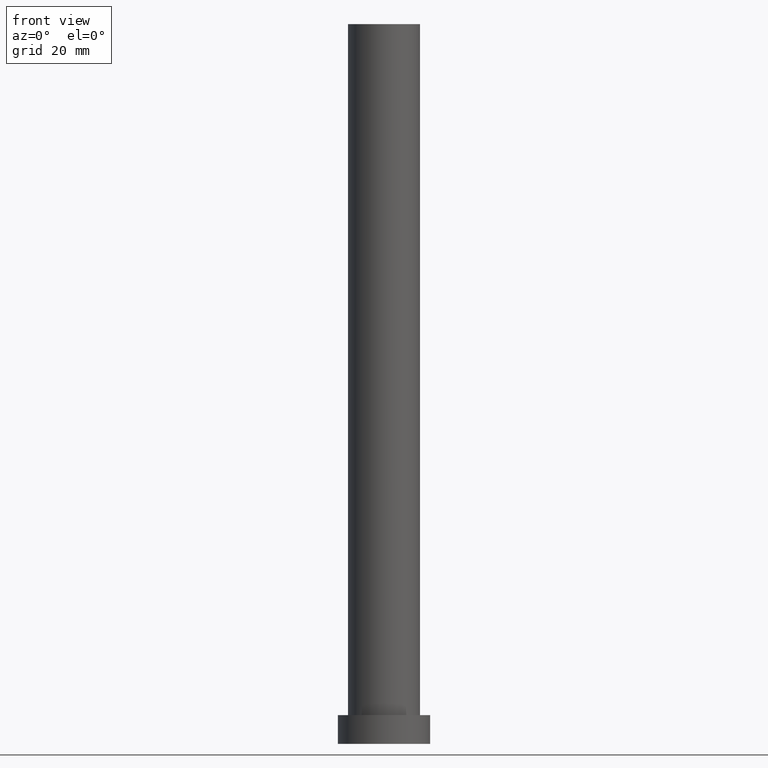
[diagram: clean part render]
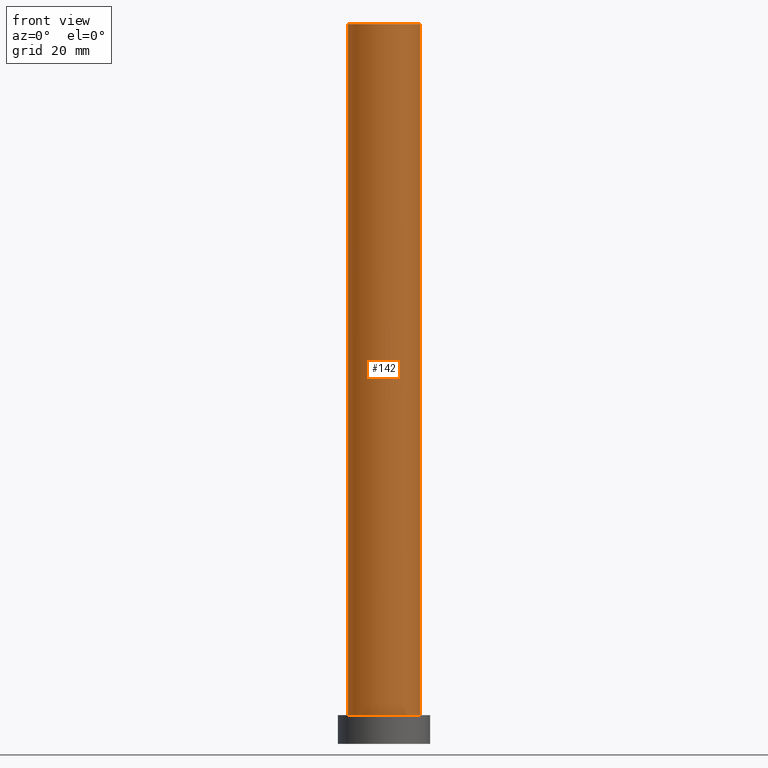
[diagram: same view with one face highlighted and labeled with its STEP entity id]
A machine part, front view. The second image highlights one B-rep face of the part: STEP entity #142.
In plain terms, the highlighted cylindrical surface (edge-blend (fillet) strip) has radius 12.5 mm, axis along (-0, -0, -1).
Its self-contained STEP definition (entity closure, byte-faithful):
#4 = ORIENTED_EDGE ( 'NONE', *, *, #124, .F. ) ;
#12 = ORIENTED_EDGE ( 'NONE', *, *, #110, .T. ) ;
#23 = CARTESIAN_POINT ( 'NONE',  ( -12.50000000000000000, 0.000000000000000000, 10.00000000000000000 ) ) ;
#25 = CIRCLE ( 'NONE', #108, 12.50000000000000000 ) ;
#42 = CIRCLE ( 'NONE', #215, 12.50000000000000000 ) ;
#57 = DIRECTION ( 'NONE',  ( -1.000000000000000000, 0.000000000000000000, 0.000000000000000000 ) ) ;
#61 = CARTESIAN_POINT ( 'NONE',  ( 0.000000000000000000, 0.000000000000000000, 10.00000000000000000 ) ) ;
#63 = DIRECTION ( 'NONE',  ( 0.000000000000000000, 0.000000000000000000, 1.000000000000000000 ) ) ;
#72 = EDGE_CURVE ( 'NONE', #236, #240, #42, .T. ) ;
#81 = CARTESIAN_POINT ( 'NONE',  ( 12.50000000000000000, 1.530808498934191521E-15, 250.0000000000000000 ) ) ;
#96 = CARTESIAN_POINT ( 'NONE',  ( 12.50000000000000000, 1.530808498934191521E-15, 250.0000000000000000 ) ) ;
#97 = ORIENTED_EDGE ( 'NONE', *, *, #106, .T. ) ;
#99 = EDGE_LOOP ( 'NONE', ( #4, #118, #97, #12 ) ) ;
#103 = DIRECTION ( 'NONE',  ( 0.000000000000000000, 0.000000000000000000, 1.000000000000000000 ) ) ;
#106 = EDGE_CURVE ( 'NONE', #236, #200, #241, .T. ) ;
#108 = AXIS2_PLACEMENT_3D ( 'NONE', #61, #63, #206 ) ;
#110 = EDGE_CURVE ( 'NONE', #200, #176, #25, .T. ) ;
#118 = ORIENTED_EDGE ( 'NONE', *, *, #72, .F. ) ;
#124 = EDGE_CURVE ( 'NONE', #240, #176, #239, .T. ) ;
#135 = CARTESIAN_POINT ( 'NONE',  ( -12.50000000000000000, 0.000000000000000000, 250.0000000000000000 ) ) ;
#142 = ADVANCED_FACE ( 'NONE', ( #216 ), #152, .T. ) ;
#147 = CARTESIAN_POINT ( 'NONE',  ( 12.50000000000000000, 1.530808498934191521E-15, 10.00000000000000000 ) ) ;
#152 = CYLINDRICAL_SURFACE ( 'NONE', #218, 12.50000000000000000 ) ;
#159 = CARTESIAN_POINT ( 'NONE',  ( 0.000000000000000000, 0.000000000000000000, 250.0000000000000000 ) ) ;
#170 = CARTESIAN_POINT ( 'NONE',  ( -12.50000000000000000, 0.000000000000000000, 250.0000000000000000 ) ) ;
#173 = DIRECTION ( 'NONE',  ( -0.000000000000000000, -0.000000000000000000, -1.000000000000000000 ) ) ;
#176 = VERTEX_POINT ( 'NONE', #147 ) ;
#184 = VECTOR ( 'NONE', #243, 1000.000000000000000 ) ;
#195 = DIRECTION ( 'NONE',  ( -0.000000000000000000, -0.000000000000000000, -1.000000000000000000 ) ) ;
#200 = VERTEX_POINT ( 'NONE', #23 ) ;
#205 = VECTOR ( 'NONE', #173, 1000.000000000000000 ) ;
#206 = DIRECTION ( 'NONE',  ( 1.000000000000000000, 0.000000000000000000, 0.000000000000000000 ) ) ;
#215 = AXIS2_PLACEMENT_3D ( 'NONE', #159, #103, #228 ) ;
#216 = FACE_OUTER_BOUND ( 'NONE', #99, .T. ) ;
#218 = AXIS2_PLACEMENT_3D ( 'NONE', #254, #195, #57 ) ;
#228 = DIRECTION ( 'NONE',  ( 1.000000000000000000, 0.000000000000000000, 0.000000000000000000 ) ) ;
#236 = VERTEX_POINT ( 'NONE', #170 ) ;
#239 = LINE ( 'NONE', #81, #205 ) ;
#240 = VERTEX_POINT ( 'NONE', #96 ) ;
#241 = LINE ( 'NONE', #135, #184 ) ;
#243 = DIRECTION ( 'NONE',  ( -0.000000000000000000, -0.000000000000000000, -1.000000000000000000 ) ) ;
#254 = CARTESIAN_POINT ( 'NONE',  ( 0.000000000000000000, 0.000000000000000000, 250.0000000000000000 ) ) ;